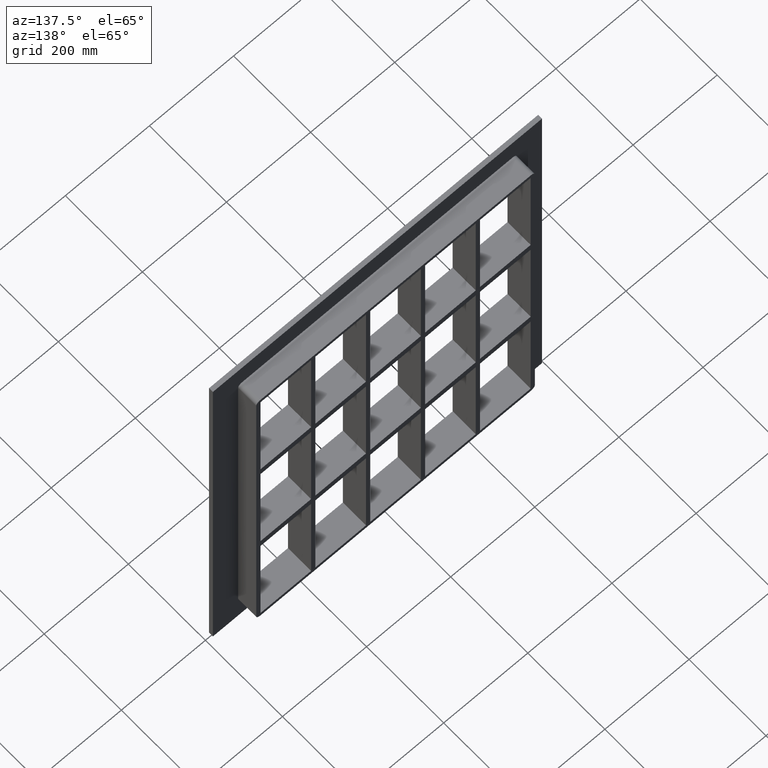
[diagram: clean part render]
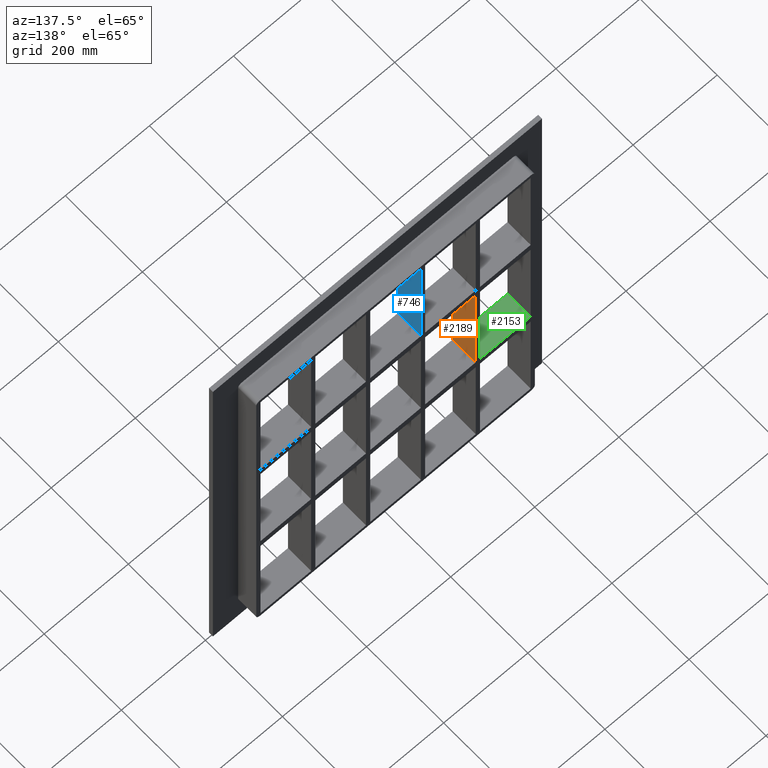
[diagram: same view with three faces highlighted in distinct colors, each labeled with its STEP entity id]
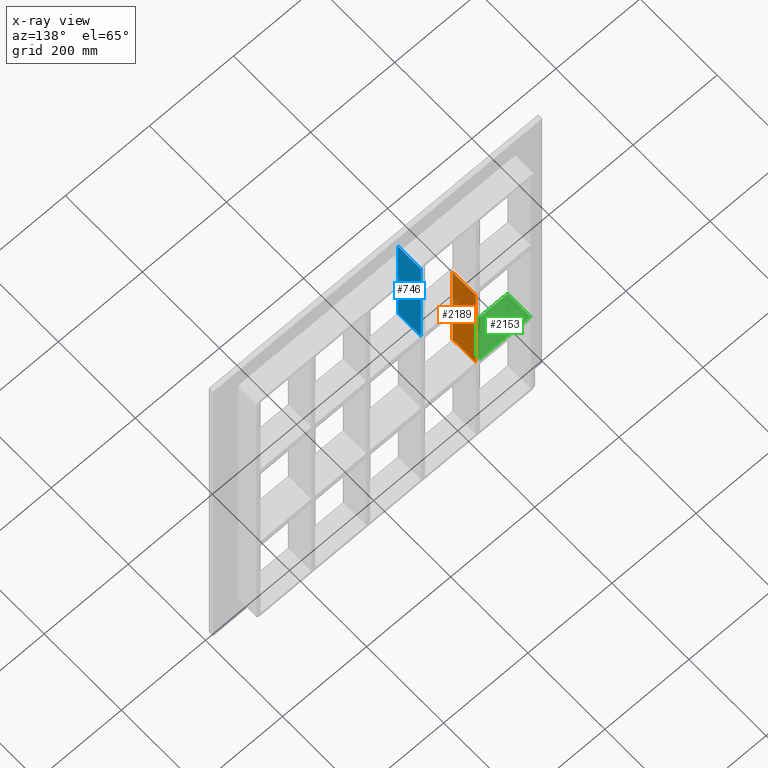
[diagram: x-ray of the same camera — body ghosted, the three highlighted faces saturated]
A machine part, auxiliary view with three faces highlighted in distinct colors.
The next image is the same camera in x-ray (body ghosted, the three faces saturated) — at least one of them is partly hidden behind the body in this view.
Their STEP definitions:

[orange] entity #2189 — the highlighted planar face has unit normal (1, 0, 0).
#123=CARTESIAN_POINT('',(-190.75000000000728,-3.0,138.99999999999062));
#124=VERTEX_POINT('',#123);
#131=CARTESIAN_POINT('',(-190.75000000000728,57.0,138.99999999999062));
#132=VERTEX_POINT('',#131);
#133=CARTESIAN_POINT('',(-190.75000000000728,57.0,138.99999999999062));
#134=DIRECTION('',(0.0,-1.0,0.0));
#135=VECTOR('',#134,60.0);
#136=LINE('',#133,#135);
#137=EDGE_CURVE('',#132,#124,#136,.T.);
#1046=CARTESIAN_POINT('',(-190.75000000000728,57.0,-139.00000000000006));
#1047=VERTEX_POINT('',#1046);
#1048=CARTESIAN_POINT('',(-190.75000000000728,57.0,138.99999999999056));
#1049=DIRECTION('',(0.0,0.0,-1.0));
#1050=VECTOR('',#1049,277.99999999999068);
#1051=LINE('',#1048,#1050);
#1052=EDGE_CURVE('',#132,#1047,#1051,.T.);
#1784=CARTESIAN_POINT('',(-190.75000000000728,-3.0,-139.00000000000006));
#1785=VERTEX_POINT('',#1784);
#1792=CARTESIAN_POINT('',(-190.75000000000728,-3.0,138.99999999999056));
#1793=DIRECTION('',(0.0,0.0,-1.0));
#1794=VECTOR('',#1793,277.99999999999068);
#1795=LINE('',#1792,#1794);
#1796=EDGE_CURVE('',#124,#1785,#1795,.T.);
#2009=CARTESIAN_POINT('',(-190.75000000000728,-3.0,-139.00000000000006));
#2010=DIRECTION('',(0.0,1.0,0.0));
#2011=VECTOR('',#2010,60.0);
#2012=LINE('',#2009,#2011);
#2013=EDGE_CURVE('',#1785,#1047,#2012,.T.);
#2178=CARTESIAN_POINT('',(-190.75000000000728,-3.0,437.0));
#2179=DIRECTION('',(1.0,0.0,0.0));
#2180=DIRECTION('',(0.0,0.0,-1.0));
#2181=AXIS2_PLACEMENT_3D('',#2178,#2179,#2180);
#2182=PLANE('',#2181);
#2183=ORIENTED_EDGE('',*,*,#137,.T.);
#2184=ORIENTED_EDGE('',*,*,#1796,.T.);
#2185=ORIENTED_EDGE('',*,*,#2013,.T.);
#2186=ORIENTED_EDGE('',*,*,#1052,.F.);
#2187=EDGE_LOOP('',(#2183,#2184,#2185,#2186));
#2188=FACE_OUTER_BOUND('',#2187,.T.);
#2189=ADVANCED_FACE('',(#2188),#2182,.T.);

[blue] entity #746 — the highlighted planar face has unit normal (1, 0, 0).
#403=CARTESIAN_POINT('',(-60.250000000007269,57.0,158.99999999999994));
#404=VERTEX_POINT('',#403);
#411=CARTESIAN_POINT('',(-60.250000000007269,-3.0,158.99999999999994));
#412=VERTEX_POINT('',#411);
#413=CARTESIAN_POINT('',(-60.250000000007269,-3.0,158.99999999999994));
#414=DIRECTION('',(0.0,1.0,0.0));
#415=VECTOR('',#414,60.0);
#416=LINE('',#413,#415);
#417=EDGE_CURVE('',#412,#404,#416,.T.);
#716=CARTESIAN_POINT('',(-60.250000000007269,-3.0,437.0));
#717=DIRECTION('',(1.0,0.0,0.0));
#718=DIRECTION('',(0.0,0.0,-1.0));
#719=AXIS2_PLACEMENT_3D('',#716,#717,#718);
#720=PLANE('',#719);
#721=ORIENTED_EDGE('',*,*,#417,.T.);
#722=CARTESIAN_POINT('',(-60.250000000007269,57.0,437.0));
#723=VERTEX_POINT('',#722);
#724=CARTESIAN_POINT('',(-60.250000000007269,57.0,437.0));
#725=DIRECTION('',(0.0,0.0,-1.0));
#726=VECTOR('',#725,278.00000000000006);
#727=LINE('',#724,#726);
#728=EDGE_CURVE('',#723,#404,#727,.T.);
#729=ORIENTED_EDGE('',*,*,#728,.F.);
#730=CARTESIAN_POINT('',(-60.250000000007269,-3.0,437.0));
#731=VERTEX_POINT('',#730);
#732=CARTESIAN_POINT('',(-60.25000000000729,-3.0,437.0));
#733=DIRECTION('',(0.0,1.0,0.0));
#734=VECTOR('',#733,60.000000000000007);
#735=LINE('',#732,#734);
#736=EDGE_CURVE('',#731,#723,#735,.T.);
#737=ORIENTED_EDGE('',*,*,#736,.F.);
#738=CARTESIAN_POINT('',(-60.250000000007269,-3.0,437.0));
#739=DIRECTION('',(0.0,0.0,-1.0));
#740=VECTOR('',#739,278.00000000000006);
#741=LINE('',#738,#740);
#742=EDGE_CURVE('',#731,#412,#741,.T.);
#743=ORIENTED_EDGE('',*,*,#742,.T.);
#744=EDGE_LOOP('',(#721,#729,#737,#743));
#745=FACE_OUTER_BOUND('',#744,.T.);
#746=ADVANCED_FACE('',(#745),#720,.T.);

[green] entity #2153 — the highlighted planar face has unit normal (0, 0, 1).
#784=CARTESIAN_POINT('',(-200.75000000000131,57.0,-139.00000000000006));
#785=VERTEX_POINT('',#784);
#792=CARTESIAN_POINT('',(-200.75000000000131,-3.0,-139.00000000000006));
#793=VERTEX_POINT('',#792);
#794=CARTESIAN_POINT('',(-200.75000000000134,57.0,-139.00000000000006));
#795=DIRECTION('',(0.0,-1.0,0.0));
#796=VECTOR('',#795,60.0);
#797=LINE('',#794,#796);
#798=EDGE_CURVE('',#785,#793,#797,.T.);
#915=CARTESIAN_POINT('',(-321.24999999999966,57.0,-139.00000000000006));
#916=VERTEX_POINT('',#915);
#923=CARTESIAN_POINT('',(-321.24999999999966,57.0,-139.00000000000006));
#924=DIRECTION('',(1.0,0.0,0.0));
#925=VECTOR('',#924,120.49999999999835);
#926=LINE('',#923,#925);
#927=EDGE_CURVE('',#916,#785,#926,.T.);
#1836=CARTESIAN_POINT('',(-321.24999999999966,-3.0,-139.00000000000006));
#1837=VERTEX_POINT('',#1836);
#1838=CARTESIAN_POINT('',(-321.24999999999966,-3.0,-139.00000000000006));
#1839=DIRECTION('',(1.0,0.0,0.0));
#1840=VECTOR('',#1839,120.49999999999835);
#1841=LINE('',#1838,#1840);
#1842=EDGE_CURVE('',#1837,#793,#1841,.T.);
#2137=CARTESIAN_POINT('',(-321.24999999999966,-3.0,-139.00000000000006));
#2138=DIRECTION('',(0.0,0.0,1.0));
#2139=DIRECTION('',(1.0,0.0,0.0));
#2140=AXIS2_PLACEMENT_3D('',#2137,#2138,#2139);
#2141=PLANE('',#2140);
#2142=ORIENTED_EDGE('',*,*,#798,.F.);
#2143=ORIENTED_EDGE('',*,*,#927,.F.);
#2144=CARTESIAN_POINT('',(-321.25,-3.0,-139.00000000000006));
#2145=DIRECTION('',(0.0,1.0,0.0));
#2146=VECTOR('',#2145,60.000000000000007);
#2147=LINE('',#2144,#2146);
#2148=EDGE_CURVE('',#1837,#916,#2147,.T.);
#2149=ORIENTED_EDGE('',*,*,#2148,.F.);
#2150=ORIENTED_EDGE('',*,*,#1842,.T.);
#2151=EDGE_LOOP('',(#2142,#2143,#2149,#2150));
#2152=FACE_OUTER_BOUND('',#2151,.T.);
#2153=ADVANCED_FACE('',(#2152),#2141,.T.);